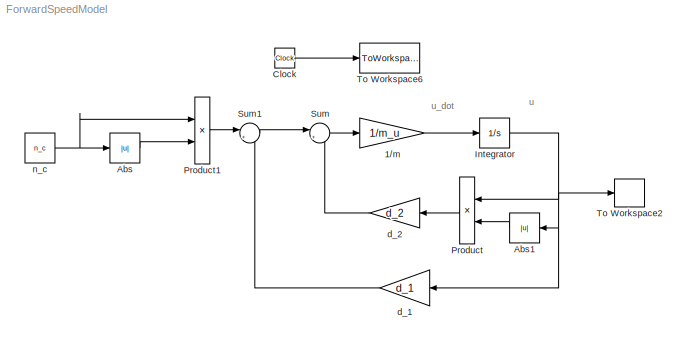
MODEL ForwardSpeedModel
KIND model
BLOCK [Gain] 1//m
  Gain = 1/m_u
  OutDataTypeStr = Inherit: Inherit via internal rule
  ParamDataTypeStr = Inherit: Inherit via internal rule
  SID = 10
  SaturateOnIntegerOverflow = off
BLOCK [Abs] Abs
  SID = 8
  SaturateOnIntegerOverflow = off
BLOCK [Abs] Abs1
  SID = 11
  SaturateOnIntegerOverflow = off
BLOCK [Clock] Clock
  SID = 1
BLOCK [Integrator] Integrator
  InitialCondition = v0(1)
  Ports = [1, 1]
  SID = 12
BLOCK [Product] Product
  InputSameDT = off
  OutDataTypeStr = Inherit: Inherit via internal rule
  Ports = [2, 1]
  RndMeth = Floor
  SID = 13
  SaturateOnIntegerOverflow = off
BLOCK [Product] Product1
  InputSameDT = off
  OutDataTypeStr = Inherit: Inherit via internal rule
  Ports = [2, 1]
  RndMeth = Floor
  SID = 9
  SaturateOnIntegerOverflow = off
BLOCK [Sum] Sum
  IconShape = round
  InputSameDT = off
  Inputs = |+-
  OutDataTypeStr = Inherit: Inherit via internal rule
  Ports = [2, 1]
  SID = 14
  SaturateOnIntegerOverflow = off
BLOCK [Sum] Sum1
  IconShape = round
  InputSameDT = off
  Inputs = |+-
  OutDataTypeStr = Inherit: Inherit via internal rule
  Ports = [2, 1]
  SID = 15
  SaturateOnIntegerOverflow = off
BLOCK [ToWorkspace] To Workspace2
  MaxDataPoints = inf
  Ports = [1]
  SID = 4
  SampleTime = tsamp
  VariableName = u
BLOCK [ToWorkspace] To Workspace6
  MaxDataPoints = inf
  Ports = [1]
  SID = 2
  SampleTime = tsamp
  VariableName = t
BLOCK [Gain] d_1
  Gain = d_1
  OutDataTypeStr = Inherit: Inherit via internal rule
  ParamDataTypeStr = Inherit: Inherit via internal rule
  SID = 16
  SaturateOnIntegerOverflow = off
BLOCK [Gain] d_2
  Gain = d_2
  OutDataTypeStr = Inherit: Inherit via internal rule
  ParamDataTypeStr = Inherit: Inherit via internal rule
  SID = 17
  SaturateOnIntegerOverflow = off
BLOCK [Constant] n_c
  SID = 3
  Value = n_c
ANNOTATION (root): u
ANNOTATION (root): u_dot
LINE 1//m:1 -> Integrator:1
LINE Abs1:1 -> Product:2
LINE Abs:1 -> Product1:2
LINE Clock:1 -> To Workspace6:1
NET Integrator:1 -> Abs1:1, Product:1, To Workspace2:1, d_1:1
LINE Product1:1 -> Sum1:1
LINE Product:1 -> d_2:1
LINE Sum1:1 -> Sum:1
LINE Sum:1 -> 1//m:1
LINE d_1:1 -> Sum1:2
LINE d_2:1 -> Sum:2
NET n_c:1 -> Abs:1, Product1:1
note: NET lines group one-source signal fan-out (src -> all destinations, sorted); 1:1 wires keep LINE
